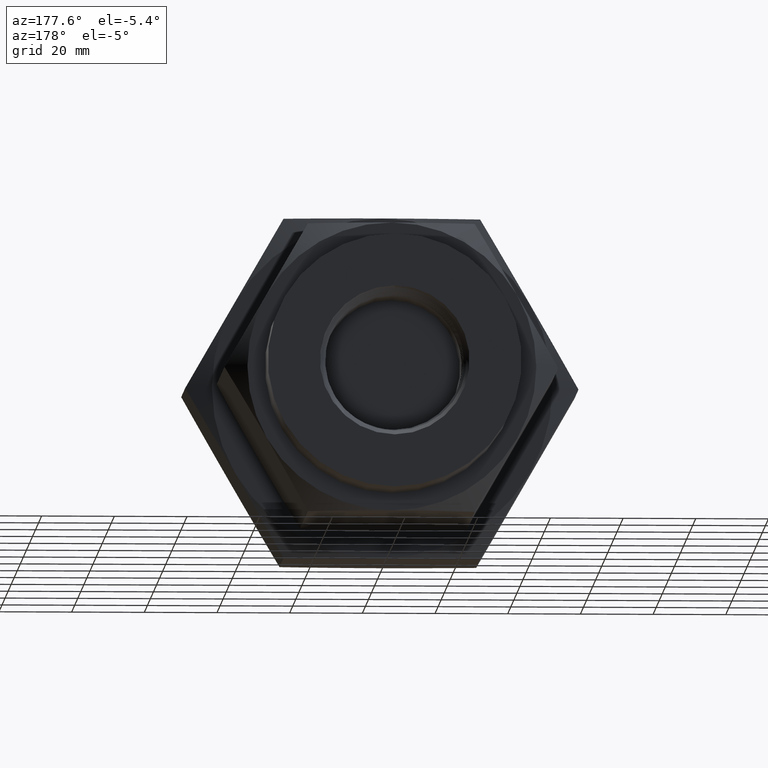
[diagram: clean part render]
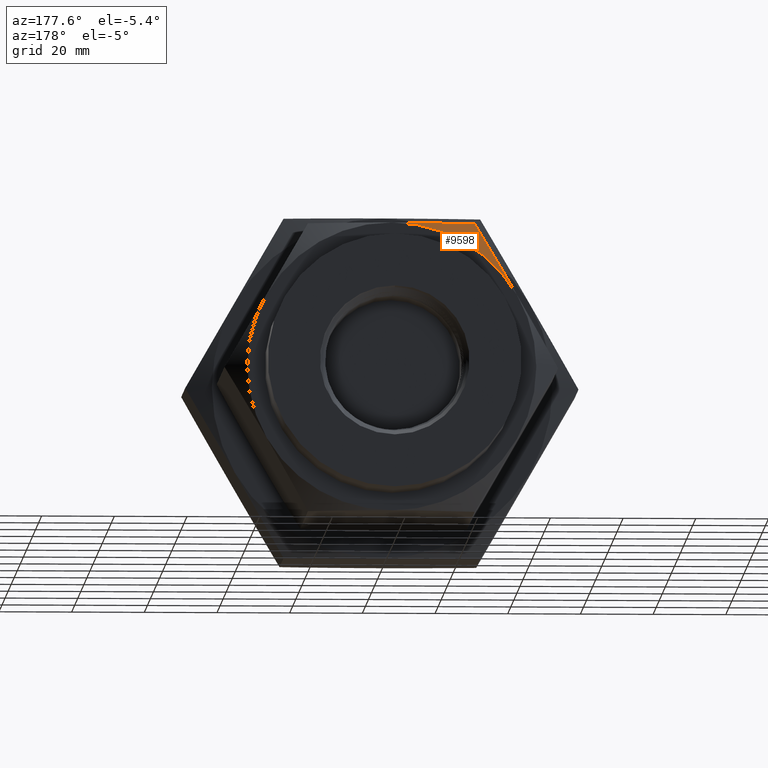
[diagram: same view with one face highlighted and labeled with its STEP entity id]
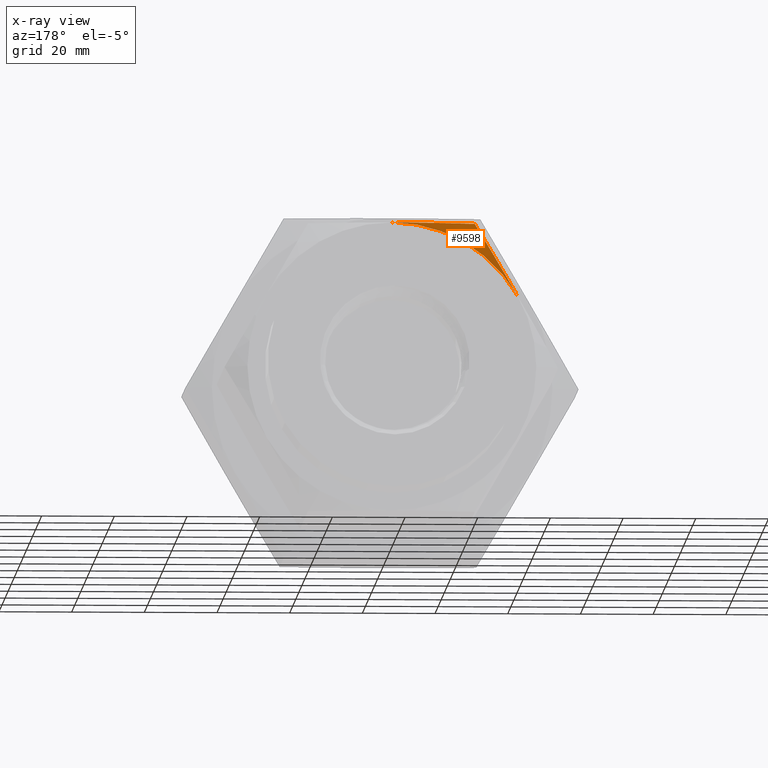
[diagram: x-ray of the same camera — body ghosted, the highlighted face saturated]
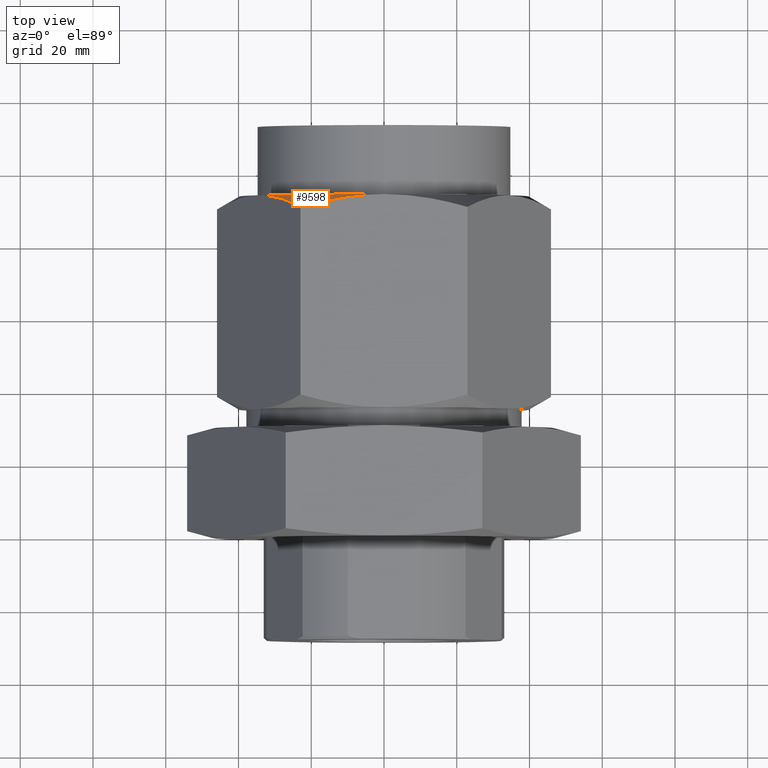
[diagram: same view with one face highlighted and labeled with its STEP entity id]
A machine part, auxiliary view. The second image highlights one B-rep face of the part: STEP entity #9598.
The next image is the same camera in x-ray: the body ghosted, the highlighted face saturated — about 0% of this face is hidden behind the body in this view.
A second angle (top view) of the same face is appended — the face is thin or edge-on in the first view.
In plain terms, the highlighted conical surface has half-angle 60 deg.
Its self-contained STEP definition (entity closure, byte-faithful):
#38 = AXIS2_PLACEMENT_3D ( 'NONE', #2359, #7739, #3140 ) ;
#328 = CARTESIAN_POINT ( 'NONE',  ( -1.355329756922494910, -1.040365258923458436, 0.7824999999999996403 ) ) ;
#429 = CONICAL_SURFACE ( 'NONE', #3825, 1.564999999999999725, 1.047197551196598297 ) ;
#1350 = VERTEX_POINT ( 'NONE', #8709 ) ;
#2233 = CARTESIAN_POINT ( 'NONE',  ( -0.5306385567798626024, -1.089975962029831713, 1.564999999999999725 ) ) ;
#2359 = CARTESIAN_POINT ( 'NONE',  ( 1.516655047970987846E-13, -1.040365258923458436, 0.0000000000000000000 ) ) ;
#2516 = ORIENTED_EDGE ( 'NONE', *, *, #3906, .F. ) ;
#2632 = VERTEX_POINT ( 'NONE', #8843 ) ;
#2676 = CARTESIAN_POINT ( 'NONE',  ( 1.516655047970987846E-13, -1.040365258923458436, 0.0000000000000000000 ) ) ;
#3011 = CARTESIAN_POINT ( 'NONE',  ( -0.7181939216858158614, -1.130768291849557183, 1.564999999999999281 ) ) ;
#3140 = DIRECTION ( 'NONE',  ( 0.0000000000000000000, 0.0000000000000000000, 1.000000000000000000 ) ) ;
#3402 = CARTESIAN_POINT ( 'NONE',  ( -0.9774579492681154669, -1.137476477510117157, 1.436993169605279563 ) ) ;
#3449 = FACE_OUTER_BOUND ( 'NONE', #6374, .T. ) ;
#3797 = CARTESIAN_POINT ( 'NONE',  ( -0.8298408535343854142, -1.159351964973835525, 1.564999999999999503 ) ) ;
#3825 = AXIS2_PLACEMENT_3D ( 'NONE', #2676, #9566, #8857 ) ;
#3906 = EDGE_CURVE ( 'Defeatured_0_19+Defeatured_0_8+Defeatured_0_18+Defeatured_0_9', #2632, #1350, #6814, .T. ) ;
#4170 = CARTESIAN_POINT ( 'NONE',  ( -1.051902535136127526, -1.102323630969568313, 1.308051364533458605 ) ) ;
#4407 = EDGE_CURVE ( 'Defeatured_0_18+Defeatured_0_8+Defeatured_0_7+Defeatured_0_19', #6875, #2632, #6048, .T. ) ;
#4558 = CARTESIAN_POINT ( 'NONE',  ( -0.9035531712816132766, -1.180145420975027282, 1.564999999999999281 ) ) ;
#4964 = CARTESIAN_POINT ( 'NONE',  ( -1.278360485195446206, -1.040365258923458880, 0.9158146892528232774 ) ) ;
#5124 = EDGE_CURVE ( 'Defeatured_0_14+Defeatured_0_8+Defeatured_0_9+Defeatured_0_7', #1350, #6875, #8566, .T. ) ;
#6048 = B_SPLINE_CURVE_WITH_KNOTS ( 'NONE', 3,
 ( #9099, #9871, #6845, #2233, #7616, #3011, #8357, #3797, #9132, #4558 ),
 .UNSPECIFIED., .F., .F.,
 ( 4, 2, 2, 2, 4 ),
 ( 0.1403836678650385028, 0.1519991699358030912, 0.1578069209711853993, 0.1607107964888765395, 0.1636146720065676796 ),
 .UNSPECIFIED. ) ;
#6374 = EDGE_LOOP ( 'NONE', ( #6956, #7606, #2516 ) ) ;
#6814 = B_SPLINE_CURVE_WITH_KNOTS ( 'NONE', 3,
 ( #7979, #3402, #4170, #9521, #4964, #328 ),
 .UNSPECIFIED., .F., .F.,
 ( 4, 2, 4 ),
 ( 2.380726875217313930E-07, 0.01161118470911831797, 0.02322213134554912406 ),
 .UNSPECIFIED. ) ;
#6845 = CARTESIAN_POINT ( 'NONE',  ( -0.3045125553253301143, -1.053509100808678545, 1.564999999999999503 ) ) ;
#6875 = VERTEX_POINT ( 'NONE', #9457 ) ;
#6956 = ORIENTED_EDGE ( 'NONE', *, *, #4407, .F. ) ;
#7606 = ORIENTED_EDGE ( 'NONE', *, *, #5124, .F. ) ;
#7616 = CARTESIAN_POINT ( 'NONE',  ( -0.6057805361446695347, -1.104880999098049044, 1.564999999999999281 ) ) ;
#7739 = DIRECTION ( 'NONE',  ( -0.0000000000000000000, 1.000000000000000000, -0.0000000000000000000 ) ) ;
#7979 = CARTESIAN_POINT ( 'NONE',  ( -0.9035531712816132766, -1.180145420975027282, 1.564999999999999281 ) ) ;
#8357 = CARTESIAN_POINT ( 'NONE',  ( -0.7555709819761008417, -1.139976259784506674, 1.564999999999999281 ) ) ;
#8566 = CIRCLE ( 'NONE', #38, 1.564999999999999725 ) ;
#8709 = CARTESIAN_POINT ( 'NONE',  ( -1.355329756922494910, -1.040365258923458436, 0.7824999999999996403 ) ) ;
#8843 = CARTESIAN_POINT ( 'NONE',  ( -0.9035531712816132766, -1.180145420975027282, 1.564999999999999281 ) ) ;
#8857 = DIRECTION ( 'NONE',  ( 0.0000000000000000000, 0.0000000000000000000, -1.000000000000000000 ) ) ;
#9099 = CARTESIAN_POINT ( 'NONE',  ( 1.511923348447406374E-13, -1.040365258923458436, 1.564999999999999503 ) ) ;
#9132 = CARTESIAN_POINT ( 'NONE',  ( -0.8667827373933879587, -1.169530711023234026, 1.564999999999999281 ) ) ;
#9457 = CARTESIAN_POINT ( 'NONE',  ( 1.511923348447406374E-13, -1.040365258923458436, 1.564999999999999503 ) ) ;
#9521 = CARTESIAN_POINT ( 'NONE',  ( -1.202347986438910610, -1.053687032516095856, 1.047472199109407587 ) ) ;
#9566 = DIRECTION ( 'NONE',  ( 0.0000000000000000000, -1.000000000000000000, 0.0000000000000000000 ) ) ;
#9598 = ADVANCED_FACE ( 'Defeatured_0_8', ( #3449 ), #429, .T. ) ;
#9871 = CARTESIAN_POINT ( 'NONE',  ( -0.1528140639889812025, -1.040365258923458214, 1.564999999999999281 ) ) ;